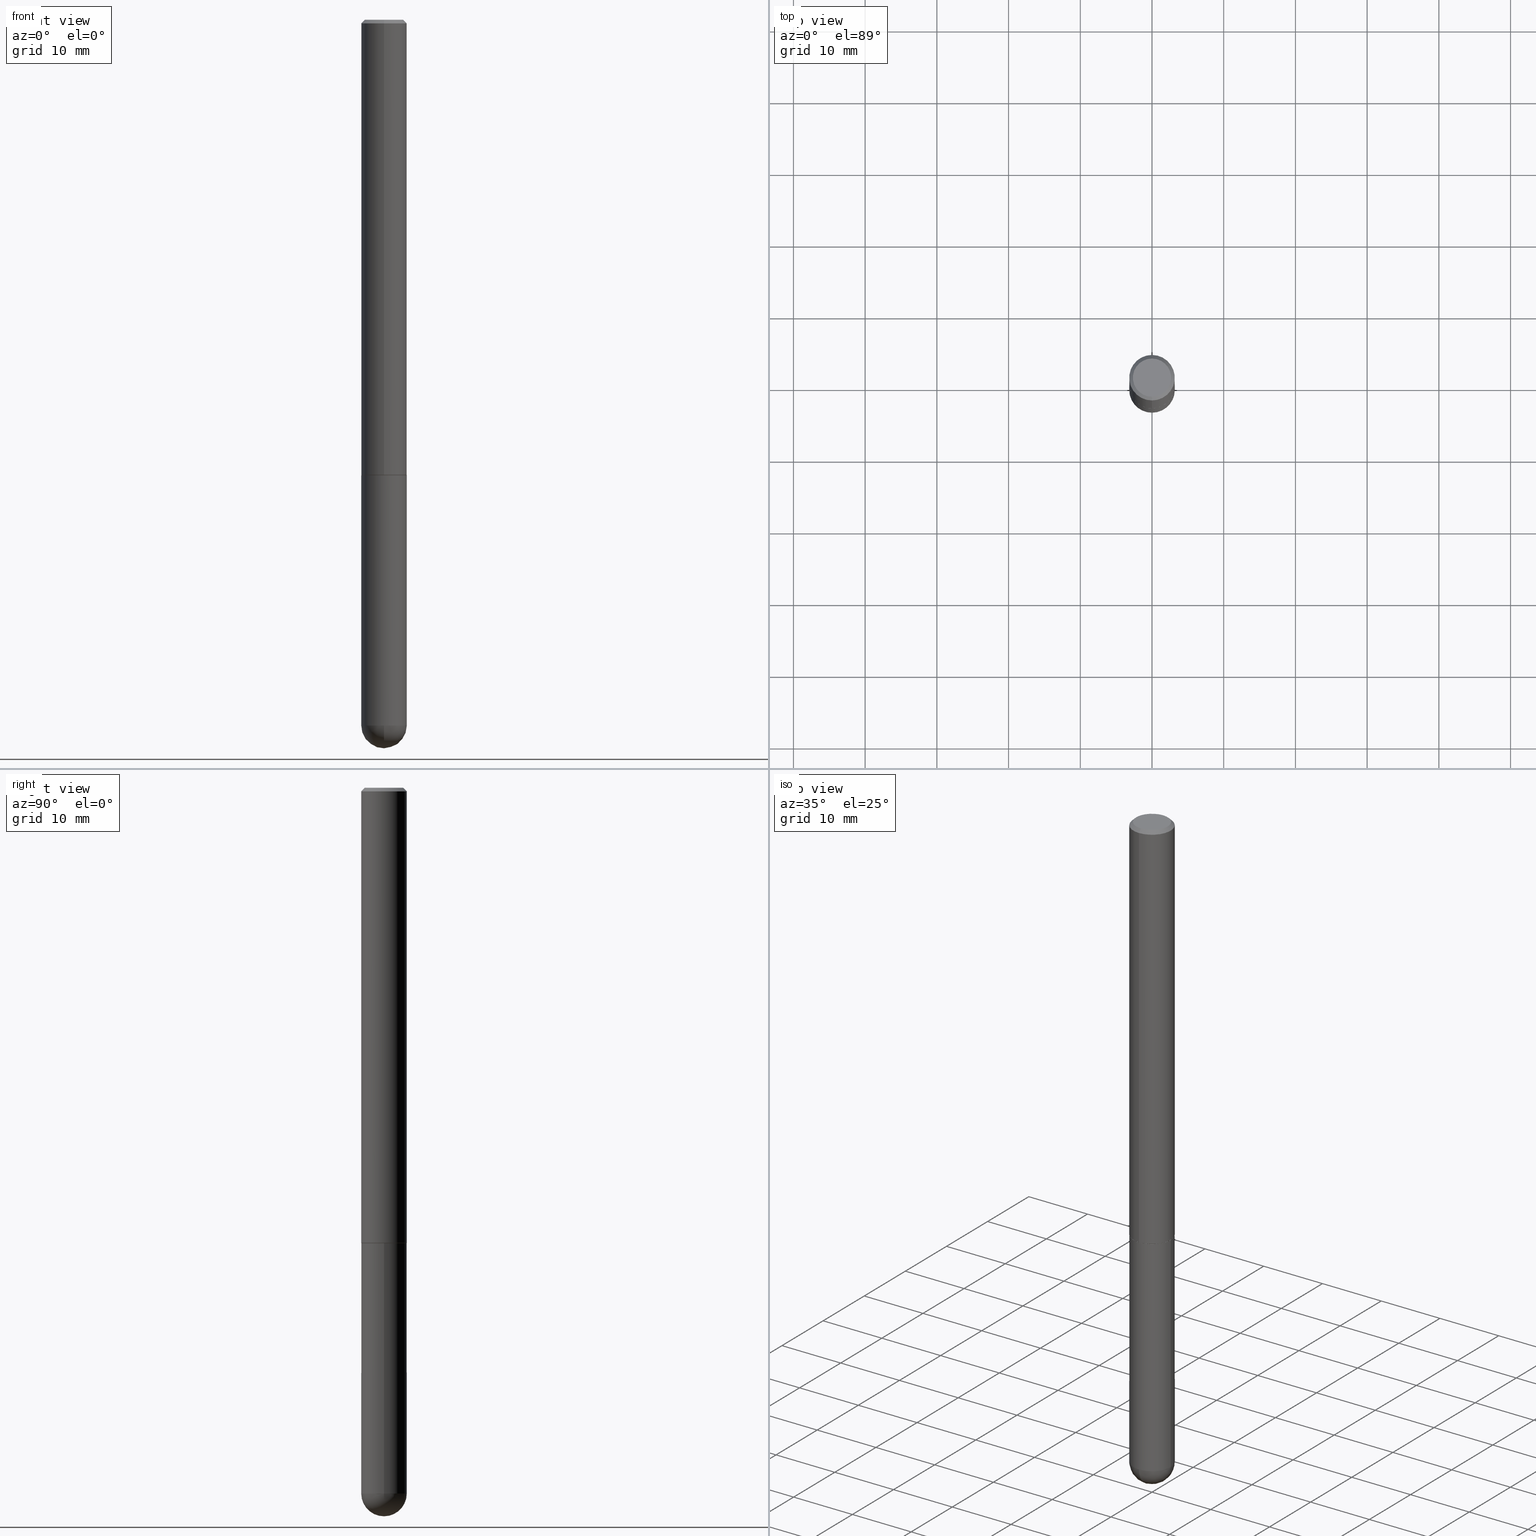
[diagram: canonical four-view strip — front | top / right | iso, engineering-drawing reading convention]
A machine part, canonical four-view strip (front | top / right | iso — engineering-drawing reading convention). The complete STEP part file that produces these views, byte-faithful:
ISO-10303-21;
HEADER;
FILE_DESCRIPTION (( 'STEP AP203' ),
    '1' );
FILE_NAME ('33324.STEP',
    '2024-02-21T18:03:57',
    ( '' ),
    ( '' ),
    'SwSTEP 2.0',
    'SolidWorks 2023',
    '' );
FILE_SCHEMA (( 'CONFIG_CONTROL_DESIGN' ));
ENDSEC;

DATA;
#1 = APPLICATION_PROTOCOL_DEFINITION ( 'international standard', 'config_control_design', 1994, #11 ) ;
#2 = VERTEX_POINT ( 'NONE', #313 ) ;
#3 = PERSON_AND_ORGANIZATION ( #84, #184 ) ;
#4 = DIRECTION ( 'NONE',  ( -2.445231133379233042E-29, 3.491821699828695402E-15, 1.000000000000000000 ) ) ;
#5 = ADVANCED_BREP_SHAPE_REPRESENTATION ( '33324', ( #63, #196, #103 ), #148 ) ;
#6 = EDGE_CURVE ( 'NONE', #157, #98, #39, .T. ) ;
#7 = PERSON_AND_ORGANIZATION ( #84, #184 ) ;
#8 = AXIS2_PLACEMENT_3D ( 'NONE', #124, #333, #246 ) ;
#9 = AXIS2_PLACEMENT_3D ( 'NONE', #109, #110, #47 ) ;
#10 = SPHERICAL_SURFACE ( 'NONE', #43, 0.1250000000000001943 ) ;
#11 = APPLICATION_CONTEXT ( 'configuration controlled 3d designs of mechanical parts and assemblies' ) ;
#12 = PERSON_AND_ORGANIZATION ( #84, #184 ) ;
#13 = CARTESIAN_POINT ( 'NONE',  ( -8.881784197000327384E-16, -0.1250000000000138500, -3.874999999999999556 ) ) ;
#14 = DIRECTION ( 'NONE',  ( -2.445231133379233042E-29, 3.491821699828695796E-15, 1.000000000000000000 ) ) ;
#15 = CYLINDRICAL_SURFACE ( 'NONE', #410, 0.1250000000000000000 ) ;
#16 = AXIS2_PLACEMENT_3D ( 'NONE', #388, #107, #79 ) ;
#17 = APPROVAL ( #197, 'UNSPECIFIED' ) ;
#18 = LINE ( 'NONE', #347, #285 ) ;
#19 = ADVANCED_FACE ( 'NONE', ( #134 ), #181, .T. ) ;
#20 = DIRECTION ( 'NONE',  ( -2.445468806185136877E-29, 3.491481338843145188E-15, 1.000000000000000000 ) ) ;
#21 = LINE ( 'NONE', #300, #344 ) ;
#22 = CC_DESIGN_SECURITY_CLASSIFICATION ( #70, ( #136 ) ) ;
#23 = DIRECTION ( 'NONE',  ( -2.445231133379233042E-29, 3.491821699828695796E-15, 1.000000000000000000 ) ) ;
#24 = DIRECTION ( 'NONE',  ( 2.445231133379232762E-29, -3.491821699828695402E-15, -1.000000000000000000 ) ) ;
#25 = DIRECTION ( 'NONE',  ( 5.024295867789304057E-15, 0.7071067811867248754, 0.7071067811863699371 ) ) ;
#26 = ORIENTED_EDGE ( 'NONE', *, *, #202, .T. ) ;
#27 = AXIS2_PLACEMENT_3D ( 'NONE', #235, #23, #330 ) ;
#28 =( LENGTH_UNIT ( ) NAMED_UNIT ( * ) SI_UNIT ( $, .METRE. ) );
#29 = EDGE_LOOP ( 'NONE', ( #236, #380 ) ) ;
#30 = EDGE_CURVE ( 'NONE', #2, #62, #18, .T. ) ;
#31 = CARTESIAN_POINT ( 'NONE',  ( 8.846257060213868511E-16, 0.1239999999999912700, -2.500000000000000444 ) ) ;
#32 = ORIENTED_EDGE ( 'NONE', *, *, #6, .T. ) ;
#33 = DIRECTION ( 'NONE',  ( -2.445231133379233042E-29, 3.491821699828695796E-15, 1.000000000000000000 ) ) ;
#34 = ORIENTED_EDGE ( 'NONE', *, *, #301, .T. ) ;
#35 = AXIS2_PLACEMENT_3D ( 'NONE', #45, #349, #288 ) ;
#36 = DIRECTION ( 'NONE',  ( 4.937700262164541731E-15, 0.7071067811865442421, -0.7071067811865507924 ) ) ;
#37 = ORIENTED_EDGE ( 'NONE', *, *, #348, .F. ) ;
#38 = MECHANICAL_CONTEXT ( 'NONE', #11, 'mechanical' ) ;
#39 = LINE ( 'NONE', #164, #365 ) ;
#40 = DIRECTION ( 'NONE',  ( -2.445231133379233042E-29, 3.491821699828695796E-15, 1.000000000000000000 ) ) ;
#41 = PERSON_AND_ORGANIZATION ( #84, #184 ) ;
#42 = AXIS2_PLACEMENT_3D ( 'NONE', #226, #40, #231 ) ;
#43 = AXIS2_PLACEMENT_3D ( 'NONE', #138, #355, #150 ) ;
#44 = CARTESIAN_POINT ( 'NONE',  ( -8.575622497214407550E-16, -0.1250000000000000555, -0.01999999999999959102 ) ) ;
#45 = CARTESIAN_POINT ( 'NONE',  ( 6.113077833448083166E-29, -8.729554249571739293E-15, -2.500000000000000000 ) ) ;
#46 = DATE_AND_TIME ( #381, #234 ) ;
#47 = DIRECTION ( 'NONE',  ( -1.000000000000000000, 6.982962677686265922E-15, -4.876176775795935793E-29 ) ) ;
#48 = CARTESIAN_POINT ( 'NONE',  ( 6.113672015462842613E-29, -8.728703347107864943E-15, -2.500000000000000000 ) ) ;
#49 = AXIS2_PLACEMENT_3D ( 'NONE', #89, #91, #53 ) ;
#50 = EDGE_CURVE ( 'NONE', #188, #269, #396, .T. ) ;
#51 = DIRECTION ( 'NONE',  ( -2.445231133379233042E-29, 3.491821699828695796E-15, 1.000000000000000000 ) ) ;
#52 = FACE_OUTER_BOUND ( 'NONE', #221, .T. ) ;
#53 = DIRECTION ( 'NONE',  ( 1.000000000000000000, -6.982962677686261189E-15, 0.000000000000000000 ) ) ;
#54 = ORIENTED_EDGE ( 'NONE', *, *, #30, .F. ) ;
#55 = CIRCLE ( 'NONE', #16, 0.1249999999999999861 ) ;
#56 = CC_DESIGN_APPROVAL ( #17, ( #70 ) ) ;
#57 = PRODUCT_DEFINITION_SHAPE ( 'NONE', 'NONE',  #290 ) ;
#58 = CARTESIAN_POINT ( 'NONE',  ( 6.110632602314704135E-29, -8.726062427871912019E-15, -2.499000000000000110 ) ) ;
#59 = PLANE ( 'NONE',  #167 ) ;
#60 = CC_DESIGN_DATE_AND_TIME_ASSIGNMENT ( #252, #129, ( #290 ) ) ;
#61 = DIRECTION ( 'NONE',  ( -2.445468806185136597E-29, 3.491481338843145583E-15, 1.000000000000000000 ) ) ;
#62 = VERTEX_POINT ( 'NONE', #74 ) ;
#63 = MANIFOLD_SOLID_BREP ( 'Body-Move/Copy2[1]', #311 ) ;
#64 = VECTOR ( 'NONE', #20, 39.37007874015748143 ) ;
#65 = EDGE_LOOP ( 'NONE', ( #216, #249, #67, #185 ) ) ;
#66 = APPROVAL_ROLE ( '' ) ;
#67 = ORIENTED_EDGE ( 'NONE', *, *, #404, .T. ) ;
#68 = DATE_AND_TIME ( #92, #128 ) ;
#69 = ORIENTED_EDGE ( 'NONE', *, *, #131, .T. ) ;
#70 = SECURITY_CLASSIFICATION ( '', '', #351 ) ;
#71 = PERSON_AND_ORGANIZATION ( #84, #184 ) ;
#72 = ADVANCED_FACE ( 'NONE', ( #81 ), #15, .T. ) ;
#73 = ORIENTED_EDGE ( 'NONE', *, *, #321, .F. ) ;
#74 = CARTESIAN_POINT ( 'NONE',  ( 8.728703347107836346E-16, 0.1249999999999999167, -0.02000000000000046185 ) ) ;
#75 = PERSON_AND_ORGANIZATION_ROLE ( 'design_supplier' ) ;
#76 = DIRECTION ( 'NONE',  ( 1.000000000000000000, -6.982962677686261189E-15, 0.000000000000000000 ) ) ;
#77 = EDGE_CURVE ( 'NONE', #133, #98, #82, .T. ) ;
#78 = AXIS2_PLACEMENT_3D ( 'NONE', #172, #291, #314 ) ;
#79 = DIRECTION ( 'NONE',  ( -6.982962677686265922E-15, -1.000000000000000000, 3.483106191921935949E-15 ) ) ;
#80 = SHAPE_DEFINITION_REPRESENTATION ( #57, #5 ) ;
#81 = FACE_OUTER_BOUND ( 'NONE', #310, .T. ) ;
#82 = LINE ( 'NONE', #44, #240 ) ;
#83 = CARTESIAN_POINT ( 'NONE',  ( 8.030407079339217170E-16, 0.1050000000000002737, -6.440588524350579794E-16 ) ) ;
#84 = PERSON ( 'UNSPECIFIED', 'UNSPECIFIED', 'UNSPECIFIED', ('UNSPECIFIED'), ('UNSPECIFIED'), ('UNSPECIFIED') ) ;
#85 = DIRECTION ( 'NONE',  ( -6.982962677686266711E-15, -1.000000000000000000, 4.370956789862811683E-15 ) ) ;
#86 = ORIENTED_EDGE ( 'NONE', *, *, #122, .T. ) ;
#87 = PLANE ( 'NONE',  #277 ) ;
#88 = EDGE_LOOP ( 'NONE', ( #361, #273, #37, #341 ) ) ;
#89 = CARTESIAN_POINT ( 'NONE',  ( 9.476191623967404313E-29, -1.352949018801718908E-14, -3.875000000000000000 ) ) ;
#90 = AXIS2_PLACEMENT_3D ( 'NONE', #141, #142, #76 ) ;
#91 = DIRECTION ( 'NONE',  ( -2.445468806185136597E-29, 3.491481338843145583E-15, 1.000000000000000000 ) ) ;
#92 = CALENDAR_DATE ( 2024, 21, 2 ) ;
#93 = ADVANCED_FACE ( 'NONE', ( #317 ), #295, .T. ) ;
#94 = VERTEX_POINT ( 'NONE', #356 ) ;
#95 = CC_DESIGN_PERSON_AND_ORGANIZATION_ASSIGNMENT ( #71, #187, ( #290 ) ) ;
#96 = AXIS2_PLACEMENT_3D ( 'NONE', #267, #297, #325 ) ;
#97 = APPROVAL_PERSON_ORGANIZATION ( #222, #179, #66 ) ;
#98 = VERTEX_POINT ( 'NONE', #292 ) ;
#99 = ORIENTED_EDGE ( 'NONE', *, *, #339, .F. ) ;
#100 = CARTESIAN_POINT ( 'NONE',  ( 0.000000000000000000, 0.000000000000000000, 0.000000000000000000 ) ) ;
#101 = ORIENTED_EDGE ( 'NONE', *, *, #131, .F. ) ;
#102 = CIRCLE ( 'NONE', #322, 0.1250000000000001943 ) ;
#103 = AXIS2_PLACEMENT_3D ( 'NONE', #279, #219, #214 ) ;
#104 = CC_DESIGN_PERSON_AND_ORGANIZATION_ASSIGNMENT ( #340, #307, ( #362 ) ) ;
#105 = ORIENTED_EDGE ( 'NONE', *, *, #404, .F. ) ;
#106 = CARTESIAN_POINT ( 'NONE',  ( 0.000000000000000000, 0.000000000000000000, 0.000000000000000000 ) ) ;
#107 = DIRECTION ( 'NONE',  ( -2.445231133379233042E-29, 3.491821699828695796E-15, 1.000000000000000000 ) ) ;
#108 = CONICAL_SURFACE ( 'NONE', #42, 0.1239999999999999991, 0.7853981633976958587 ) ;
#109 = CARTESIAN_POINT ( 'NONE',  ( 8.728703347108443769E-16, 0.1249999999999912709, -2.500000000000000444 ) ) ;
#110 = DIRECTION ( 'NONE',  ( 2.438088387897960049E-29, -3.491481338843145188E-15, -1.000000000000000000 ) ) ;
#111 = ADVANCED_FACE ( 'NONE', ( #261 ), #259, .F. ) ;
#112 = CARTESIAN_POINT ( 'NONE',  ( 9.476191623967404313E-29, -1.352949018801718908E-14, -3.875000000000000000 ) ) ;
#113 = CARTESIAN_POINT ( 'NONE',  ( 8.728703347108771147E-16, 0.1249999999999863443, -3.875000000000000444 ) ) ;
#114 = VECTOR ( 'NONE', #408, 39.37007874015748854 ) ;
#115 = ORIENTED_EDGE ( 'NONE', *, *, #293, .F. ) ;
#116 = CARTESIAN_POINT ( 'NONE',  ( 9.145071846053518065E-29, -1.400367255615723938E-14, -3.875000000000000000 ) ) ;
#117 = ORIENTED_EDGE ( 'NONE', *, *, #165, .F. ) ;
#118 = DIRECTION ( 'NONE',  ( -6.982962677686266711E-15, -1.000000000000000000, 3.491821699828695796E-15 ) ) ;
#119 = CARTESIAN_POINT ( 'NONE',  ( 9.456100236134031739E-29, -1.443245368101796326E-14, -4.000000000000000888 ) ) ;
#120 = EDGE_LOOP ( 'NONE', ( #338, #130, #328, #73 ) ) ;
#121 = AXIS2_PLACEMENT_3D ( 'NONE', #263, #14, #319 ) ;
#122 = EDGE_CURVE ( 'NONE', #94, #409, #211, .T. ) ;
#123 = VERTEX_POINT ( 'NONE', #13 ) ;
#124 = CARTESIAN_POINT ( 'NONE',  ( 4.890462266758471899E-31, -6.983643399657399974E-17, -0.02000000000000002470 ) ) ;
#125 = LINE ( 'NONE', #370, #114 ) ;
#126 = ORIENTED_EDGE ( 'NONE', *, *, #359, .T. ) ;
#127 = AXIS2_PLACEMENT_3D ( 'NONE', #208, #237, #400 ) ;
#128 = LOCAL_TIME ( 13, 3, 57.00000000000000000, #274 ) ;
#129 = DATE_TIME_ROLE ( 'creation_date' ) ;
#130 = ORIENTED_EDGE ( 'NONE', *, *, #342, .T. ) ;
#131 = EDGE_CURVE ( 'NONE', #345, #306, #248, .T. ) ;
#132 = APPROVAL_DATE_TIME ( #68, #179 ) ;
#133 = VERTEX_POINT ( 'NONE', #194 ) ;
#134 = FACE_OUTER_BOUND ( 'NONE', #65, .T. ) ;
#135 = AXIS2_PLACEMENT_3D ( 'NONE', #58, #358, #85 ) ;
#136 = PRODUCT_DEFINITION_FORMATION_WITH_SPECIFIED_SOURCE ( 'ANY', '', #362, .NOT_KNOWN. ) ;
#137 = ADVANCED_FACE ( 'NONE', ( #198 ), #230, .T. ) ;
#138 = CARTESIAN_POINT ( 'NONE',  ( 9.145071846053518065E-29, -1.400367255615723938E-14, -3.875000000000000000 ) ) ;
#139 = DIRECTION ( 'NONE',  ( -6.982962677686266711E-15, -1.000000000000000000, 3.491821699828695796E-15 ) ) ;
#140 = CIRCLE ( 'NONE', #241, 0.1239999999999999991 ) ;
#141 = CARTESIAN_POINT ( 'NONE',  ( 9.476191623967404313E-29, -1.352949018801718908E-14, -3.875000000000000000 ) ) ;
#142 = DIRECTION ( 'NONE',  ( -2.445468806185136597E-29, 3.491481338843145583E-15, 1.000000000000000000 ) ) ;
#143 = APPROVAL ( #190, 'UNSPECIFIED' ) ;
#144 = DIRECTION ( 'NONE',  ( -2.445231133379233042E-29, 3.491821699828695796E-15, 1.000000000000000000 ) ) ;
#145 = CONICAL_SURFACE ( 'NONE', #373, 0.1239999999999999991, 0.7853981633976958587 ) ;
#146 = EDGE_CURVE ( 'NONE', #281, #133, #183, .T. ) ;
#147 = CARTESIAN_POINT ( 'NONE',  ( 6.113077833448083166E-29, -8.729554249571739293E-15, -2.500000000000000000 ) ) ;
#148 =( GEOMETRIC_REPRESENTATION_CONTEXT ( 3 ) GLOBAL_UNCERTAINTY_ASSIGNED_CONTEXT ( ( #207 ) ) GLOBAL_UNIT_ASSIGNED_CONTEXT ( ( #276, #406, #332 ) ) REPRESENTATION_CONTEXT ( 'NONE', 'WORKASPACE' ) );
#149 = VERTEX_POINT ( 'NONE', #392 ) ;
#150 = DIRECTION ( 'NONE',  ( 6.982962677686265922E-15, 1.000000000000000000, -4.370956789862814050E-15 ) ) ;
#151 = CARTESIAN_POINT ( 'NONE',  ( 4.890462266758471899E-31, -6.983643399657399974E-17, -0.02000000000000002470 ) ) ;
#152 = ADVANCED_FACE ( 'NONE', ( #260 ), #108, .T. ) ;
#153 = CARTESIAN_POINT ( 'NONE',  ( 6.113672015462842613E-29, -8.728703347107864943E-15, -2.500000000000000000 ) ) ;
#154 = EDGE_LOOP ( 'NONE', ( #86, #191, #99, #280 ) ) ;
#155 = CIRCLE ( 'NONE', #382, 0.1250000000000002776 ) ;
#156 = LENGTH_MEASURE_WITH_UNIT ( LENGTH_MEASURE( 0.02539999999999999897 ), #28 );
#157 = VERTEX_POINT ( 'NONE', #166 ) ;
#158 = ORIENTED_EDGE ( 'NONE', *, *, #218, .T. ) ;
#159 = CALENDAR_DATE ( 2024, 21, 2 ) ;
#160 = ORIENTED_EDGE ( 'NONE', *, *, #232, .T. ) ;
#161 = LOCAL_TIME ( 13, 3, 57.00000000000000000, #384 ) ;
#162 = ORIENTED_EDGE ( 'NONE', *, *, #385, .T. ) ;
#163 = DATE_AND_TIME ( #304, #305 ) ;
#164 = CARTESIAN_POINT ( 'NONE',  ( -8.728703347107842263E-16, -0.1250000000000001388, 4.364777124785874183E-16 ) ) ;
#165 = EDGE_CURVE ( 'NONE', #62, #98, #55, .T. ) ;
#166 = CARTESIAN_POINT ( 'NONE',  ( -8.728703347107241743E-16, -0.1250000000000090206, -2.498999999999999666 ) ) ;
#167 = AXIS2_PLACEMENT_3D ( 'NONE', #357, #24, #327 ) ;
#168 = ADVANCED_FACE ( 'NONE', ( #201 ), #203, .T. ) ;
#169 = DIRECTION ( 'NONE',  ( 1.000000000000000000, -6.982962677686270655E-15, 0.000000000000000000 ) ) ;
#170 = CARTESIAN_POINT ( 'NONE',  ( 0.000000000000000000, 0.000000000000000000, 0.000000000000000000 ) ) ;
#171 = CONICAL_SURFACE ( 'NONE', #403, 0.1249999999999999861, 0.7853981633974471688 ) ;
#172 = CARTESIAN_POINT ( 'NONE',  ( 9.145071846053518065E-29, -1.400367255615723938E-14, -3.875000000000000000 ) ) ;
#173 = DIRECTION ( 'NONE',  ( -6.982962677686266711E-15, -1.000000000000000000, 4.370956789862811683E-15 ) ) ;
#174 = CARTESIAN_POINT ( 'NONE',  ( 6.110632602314704135E-29, -8.726062427871912019E-15, -2.499000000000000110 ) ) ;
#175 = APPLICATION_CONTEXT ( 'configuration controlled 3d designs of mechanical parts and assemblies' ) ;
#176 = DIRECTION ( 'NONE',  ( 1.000000000000000000, -6.982962677686261189E-15, 0.000000000000000000 ) ) ;
#177 = CYLINDRICAL_SURFACE ( 'NONE', #286, 0.1250000000000000000 ) ;
#178 = DIRECTION ( 'NONE',  ( 6.982962677686265922E-15, 1.000000000000000000, -3.483106191921935949E-15 ) ) ;
#179 = APPROVAL ( #336, 'UNSPECIFIED' ) ;
#180 = DIRECTION ( 'NONE',  ( -6.982962677686265922E-15, -1.000000000000000000, 4.406206441393973340E-15 ) ) ;
#181 = CONICAL_SURFACE ( 'NONE', #8, 0.1249999999999999861, 0.7853981633974471688 ) ;
#182 = ORIENTED_EDGE ( 'NONE', *, *, #287, .F. ) ;
#183 = CIRCLE ( 'NONE', #329, 0.1050000000000002737 ) ;
#184 = ORGANIZATION ( 'UNSPECIFIED', 'UNSPECIFIED', '' ) ;
#185 = ORIENTED_EDGE ( 'NONE', *, *, #165, .T. ) ;
#186 = ADVANCED_FACE ( 'NONE', ( #284 ), #10, .T. ) ;
#187 = PERSON_AND_ORGANIZATION_ROLE ( 'creator' ) ;
#188 = VERTEX_POINT ( 'NONE', #389 ) ;
#189 = CC_DESIGN_PERSON_AND_ORGANIZATION_ASSIGNMENT ( #41, #387, ( #136 ) ) ;
#190 = APPROVAL_STATUS ( 'not_yet_approved' ) ;
#191 = ORIENTED_EDGE ( 'NONE', *, *, #315, .T. ) ;
#192 = COORDINATED_UNIVERSAL_TIME_OFFSET ( 5, 0, .BEHIND. ) ;
#193 = EDGE_LOOP ( 'NONE', ( #383, #312, #101, #256 ) ) ;
#194 = CARTESIAN_POINT ( 'NONE',  ( -7.889572697437268042E-16, -0.1050000000000002737, 8.922370452897002864E-17 ) ) ;
#195 = CC_DESIGN_DATE_AND_TIME_ASSIGNMENT ( #318, #283, ( #70 ) ) ;
#196 = MANIFOLD_SOLID_BREP ( 'Body-Move/Copy2[2]', #395 ) ;
#197 = APPROVAL_STATUS ( 'not_yet_approved' ) ;
#198 = FACE_OUTER_BOUND ( 'NONE', #193, .T. ) ;
#199 = APPROVAL_PERSON_ORGANIZATION ( #250, #143, #379 ) ;
#200 = CALENDAR_DATE ( 2024, 21, 2 ) ;
#201 = FACE_OUTER_BOUND ( 'NONE', #411, .T. ) ;
#202 = EDGE_CURVE ( 'NONE', #149, #123, #262, .T. ) ;
#203 = CYLINDRICAL_SURFACE ( 'NONE', #121, 0.1250000000000001388 ) ;
#204 = DIRECTION ( 'NONE',  ( -6.982962677686265922E-15, -1.000000000000000000, 3.491821699828695402E-15 ) ) ;
#205 = CIRCLE ( 'NONE', #96, 0.1250000000000001943 ) ;
#206 = CARTESIAN_POINT ( 'NONE',  ( -0.1250000000000000000, 8.881784197001252323E-16, -6.148668862818632227E-30 ) ) ;
#207 = UNCERTAINTY_MEASURE_WITH_UNIT (LENGTH_MEASURE( 1.000000000000000082E-05 ), #276, 'distance_accuracy_value', 'NONE');
#208 = CARTESIAN_POINT ( 'NONE',  ( 9.476191623967404313E-29, -1.352949018801718908E-14, -3.875000000000000000 ) ) ;
#209 = DIRECTION ( 'NONE',  ( -2.445231133379233042E-29, 3.491821699828695796E-15, 1.000000000000000000 ) ) ;
#210 = ORIENTED_EDGE ( 'NONE', *, *, #218, .F. ) ;
#211 = CIRCLE ( 'NONE', #35, 0.1239999999999999991 ) ;
#212 = CARTESIAN_POINT ( 'NONE',  ( 0.1250000000000000278, -1.200196710227331272E-14, -3.875000000000000000 ) ) ;
#213 = DIRECTION ( 'NONE',  ( 1.000000000000000000, -6.982962677686270655E-15, 0.000000000000000000 ) ) ;
#214 = DIRECTION ( 'NONE',  ( 1.000000000000000000, 0.000000000000000000, 0.000000000000000000 ) ) ;
#215 = CIRCLE ( 'NONE', #217, 0.1250000000000000278 ) ;
#216 = ORIENTED_EDGE ( 'NONE', *, *, #77, .F. ) ;
#217 = AXIS2_PLACEMENT_3D ( 'NONE', #112, #401, #176 ) ;
#218 = EDGE_CURVE ( 'NONE', #345, #269, #21, .T. ) ;
#219 = DIRECTION ( 'NONE',  ( 0.000000000000000000, 0.000000000000000000, 1.000000000000000000 ) ) ;
#220 = ORIENTED_EDGE ( 'NONE', *, *, #223, .T. ) ;
#221 = EDGE_LOOP ( 'NONE', ( #278, #308, #182, #210, #69 ) ) ;
#222 = PERSON_AND_ORGANIZATION ( #84, #184 ) ;
#223 = EDGE_CURVE ( 'NONE', #409, #94, #140, .T. ) ;
#224 = EDGE_LOOP ( 'NONE', ( #364, #376, #402, #105 ) ) ;
#225 = CIRCLE ( 'NONE', #49, 0.1250000000000000278 ) ;
#226 = CARTESIAN_POINT ( 'NONE',  ( 6.113077833448083166E-29, -8.729554249571739293E-15, -2.500000000000000000 ) ) ;
#227 = DIRECTION ( 'NONE',  ( -2.445468806185136597E-29, 3.491481338843145583E-15, 1.000000000000000000 ) ) ;
#228 = DIRECTION ( 'NONE',  ( -2.445468806185136597E-29, 3.491481338843145583E-15, 1.000000000000000000 ) ) ;
#229 = CIRCLE ( 'NONE', #27, 0.1249999999999999861 ) ;
#230 = SPHERICAL_SURFACE ( 'NONE', #78, 0.1250000000000001943 ) ;
#231 = DIRECTION ( 'NONE',  ( -6.982962677686265922E-15, -1.000000000000000000, 4.406206441393973340E-15 ) ) ;
#232 = EDGE_CURVE ( 'NONE', #133, #281, #303, .T. ) ;
#233 = FACE_OUTER_BOUND ( 'NONE', #244, .T. ) ;
#234 = LOCAL_TIME ( 13, 3, 57.00000000000000000, #346 ) ;
#235 = CARTESIAN_POINT ( 'NONE',  ( 4.890462266758471899E-31, -6.983643399657399974E-17, -0.02000000000000002470 ) ) ;
#236 = ORIENTED_EDGE ( 'NONE', *, *, #122, .F. ) ;
#237 = DIRECTION ( 'NONE',  ( -2.445468806185136597E-29, 3.491481338843145583E-15, 1.000000000000000000 ) ) ;
#238 = VERTEX_POINT ( 'NONE', #119 ) ;
#239 = FACE_OUTER_BOUND ( 'NONE', #29, .T. ) ;
#240 = VECTOR ( 'NONE', #386, 39.37007874015748143 ) ;
#241 = AXIS2_PLACEMENT_3D ( 'NONE', #147, #209, #242 ) ;
#242 = DIRECTION ( 'NONE',  ( -6.982962677686265922E-15, -1.000000000000000000, 4.406206441393973340E-15 ) ) ;
#243 = APPROVAL_PERSON_ORGANIZATION ( #3, #17, #390 ) ;
#244 = EDGE_LOOP ( 'NONE', ( #275, #160 ) ) ;
#245 = ADVANCED_FACE ( 'NONE', ( #233 ), #59, .F. ) ;
#246 = DIRECTION ( 'NONE',  ( 6.982962677686265922E-15, 1.000000000000000000, -3.483106191921935949E-15 ) ) ;
#247 = FACE_OUTER_BOUND ( 'NONE', #154, .T. ) ;
#248 = CIRCLE ( 'NONE', #90, 0.1250000000000000278 ) ;
#249 = ORIENTED_EDGE ( 'NONE', *, *, #146, .F. ) ;
#250 = PERSON_AND_ORGANIZATION ( #84, #184 ) ;
#251 = EDGE_LOOP ( 'NONE', ( #399, #253 ) ) ;
#252 = DATE_AND_TIME ( #159, #354 ) ;
#253 = ORIENTED_EDGE ( 'NONE', *, *, #50, .T. ) ;
#254 = ADVANCED_FACE ( 'NONE', ( #239 ), #87, .F. ) ;
#255 = PERSON_AND_ORGANIZATION_ROLE ( 'classification_officer' ) ;
#256 = ORIENTED_EDGE ( 'NONE', *, *, #301, .F. ) ;
#257 = CIRCLE ( 'NONE', #135, 0.1250000000000002776 ) ;
#258 = CC_DESIGN_APPROVAL ( #143, ( #136 ) ) ;
#259 = PLANE ( 'NONE',  #9 ) ;
#260 = FACE_OUTER_BOUND ( 'NONE', #337, .T. ) ;
#261 = FACE_OUTER_BOUND ( 'NONE', #251, .T. ) ;
#262 = CIRCLE ( 'NONE', #127, 0.1250000000000000278 ) ;
#263 = CARTESIAN_POINT ( 'NONE',  ( 0.000000000000000000, 0.000000000000000000, 0.000000000000000000 ) ) ;
#264 = CARTESIAN_POINT ( 'NONE',  ( 6.783500887765189556E-45, -9.686927046430710315E-31, -2.774175739530439939E-16 ) ) ;
#265 = FACE_OUTER_BOUND ( 'NONE', #224, .T. ) ;
#266 = CARTESIAN_POINT ( 'NONE',  ( 6.783500887765189556E-45, -9.686927046430710315E-31, -2.774175739530439939E-16 ) ) ;
#267 = CARTESIAN_POINT ( 'NONE',  ( 9.145071846053518065E-29, -1.400367255615723938E-14, -3.875000000000000000 ) ) ;
#268 = DIRECTION ( 'NONE',  ( -2.445231133379232762E-29, 3.491821699828695402E-15, 1.000000000000000000 ) ) ;
#269 = VERTEX_POINT ( 'NONE', #398 ) ;
#270 = VECTOR ( 'NONE', #25, 39.37007874015748854 ) ;
#271 = DIRECTION ( 'NONE',  ( 6.982962677686266711E-15, 1.000000000000000000, 0.000000000000000000 ) ) ;
#272 = LINE ( 'NONE', #377, #335 ) ;
#273 = ORIENTED_EDGE ( 'NONE', *, *, #30, .T. ) ;
#274 = COORDINATED_UNIVERSAL_TIME_OFFSET ( 5, 0, .BEHIND. ) ;
#275 = ORIENTED_EDGE ( 'NONE', *, *, #146, .T. ) ;
#276 =( CONVERSION_BASED_UNIT ( 'INCH', #156 ) LENGTH_UNIT ( ) NAMED_UNIT ( #324 ) );
#277 = AXIS2_PLACEMENT_3D ( 'NONE', #363, #268, #368 ) ;
#278 = ORIENTED_EDGE ( 'NONE', *, *, #321, .T. ) ;
#279 = CARTESIAN_POINT ( 'NONE',  ( 0.000000000000000000, 0.000000000000000000, 0.000000000000000000 ) ) ;
#280 = ORIENTED_EDGE ( 'NONE', *, *, #385, .F. ) ;
#281 = VERTEX_POINT ( 'NONE', #83 ) ;
#282 = ADVANCED_FACE ( 'NONE', ( #265 ), #171, .T. ) ;
#283 = DATE_TIME_ROLE ( 'classification_date' ) ;
#284 = FACE_OUTER_BOUND ( 'NONE', #120, .T. ) ;
#285 = VECTOR ( 'NONE', #320, 39.37007874015748143 ) ;
#286 = AXIS2_PLACEMENT_3D ( 'NONE', #100, #61, #369 ) ;
#287 = EDGE_CURVE ( 'NONE', #269, #188, #294, .T. ) ;
#288 = DIRECTION ( 'NONE',  ( -6.982962677686265922E-15, -1.000000000000000000, 4.406206441393973340E-15 ) ) ;
#289 = APPROVAL_DATE_TIME ( #46, #17 ) ;
#290 = PRODUCT_DEFINITION ( 'UNKNOWN', '', #136, #334 ) ;
#291 = DIRECTION ( 'NONE',  ( -1.000000000000000000, 6.982962677686265922E-15, -4.883557194083112340E-29 ) ) ;
#292 = CARTESIAN_POINT ( 'NONE',  ( -8.575622497214407550E-16, -0.1250000000000000555, -0.01999999999999959102 ) ) ;
#293 = EDGE_CURVE ( 'NONE', #149, #188, #331, .T. ) ;
#294 = CIRCLE ( 'NONE', #397, 0.1250000000000000000 ) ;
#295 = CYLINDRICAL_SURFACE ( 'NONE', #366, 0.1250000000000001388 ) ;
#296 = PRODUCT_RELATED_PRODUCT_CATEGORY ( 'detail', '', ( #362 ) ) ;
#297 = DIRECTION ( 'NONE',  ( -1.000000000000000000, 7.105427357601001070E-15, -4.926315508542082329E-29 ) ) ;
#298 = CARTESIAN_POINT ( 'NONE',  ( 8.810729923425852623E-16, 0.1239999999999912700, -2.500000000000000444 ) ) ;
#299 = DIRECTION ( 'NONE',  ( 1.000000000000000000, -6.982962677686265922E-15, 4.883557194083112340E-29 ) ) ;
#300 = CARTESIAN_POINT ( 'NONE',  ( 0.1250000000000000000, -8.728703347107833388E-16, 6.095220969744919741E-30 ) ) ;
#301 = EDGE_CURVE ( 'NONE', #123, #345, #225, .T. ) ;
#302 = DIRECTION ( 'NONE',  ( -2.445468806185136597E-29, 3.491481338843145583E-15, 1.000000000000000000 ) ) ;
#303 = CIRCLE ( 'NONE', #353, 0.1050000000000002737 ) ;
#304 = CALENDAR_DATE ( 2024, 21, 2 ) ;
#305 = LOCAL_TIME ( 13, 3, 57.00000000000000000, #192 ) ;
#306 = VERTEX_POINT ( 'NONE', #113 ) ;
#307 = PERSON_AND_ORGANIZATION_ROLE ( 'design_owner' ) ;
#308 = ORIENTED_EDGE ( 'NONE', *, *, #293, .T. ) ;
#309 = COORDINATED_UNIVERSAL_TIME_OFFSET ( 5, 0, .BEHIND. ) ;
#310 = EDGE_LOOP ( 'NONE', ( #115, #26, #34, #158, #371 ) ) ;
#311 = CLOSED_SHELL ( 'NONE', ( #367, #186, #137, #111, #72 ) ) ;
#312 = ORIENTED_EDGE ( 'NONE', *, *, #326, .T. ) ;
#313 = CARTESIAN_POINT ( 'NONE',  ( 8.881784197001571812E-16, 0.1249999999999915484, -2.499000000000000998 ) ) ;
#314 = DIRECTION ( 'NONE',  ( 6.982962677686265922E-15, 1.000000000000000000, -4.370956789862814050E-15 ) ) ;
#315 = EDGE_CURVE ( 'NONE', #409, #2, #323, .T. ) ;
#316 = DIRECTION ( 'NONE',  ( 1.000000000000000000, -6.982962677686266711E-15, 4.876176775795935793E-29 ) ) ;
#317 = FACE_OUTER_BOUND ( 'NONE', #88, .T. ) ;
#318 = DATE_AND_TIME ( #200, #161 ) ;
#319 = DIRECTION ( 'NONE',  ( -6.982962677686265922E-15, -1.000000000000000000, 3.491821699828695402E-15 ) ) ;
#320 = DIRECTION ( 'NONE',  ( -2.445231133379233042E-29, 3.491821699828695402E-15, 1.000000000000000000 ) ) ;
#321 = EDGE_CURVE ( 'NONE', #306, #149, #215, .T. ) ;
#322 = AXIS2_PLACEMENT_3D ( 'NONE', #116, #299, #271 ) ;
#323 = LINE ( 'NONE', #298, #270 ) ;
#324 = DIMENSIONAL_EXPONENTS ( 1.000000000000000000, 0.000000000000000000, 0.000000000000000000, 0.000000000000000000, 0.000000000000000000, 0.000000000000000000, 0.000000000000000000 ) ;
#325 = DIRECTION ( 'NONE',  ( -7.105427357601001859E-15, -1.000000000000000000, 0.000000000000000000 ) ) ;
#326 = EDGE_CURVE ( 'NONE', #238, #306, #102, .T. ) ;
#327 = DIRECTION ( 'NONE',  ( 6.982962677686265922E-15, 1.000000000000000000, -3.491821699828695402E-15 ) ) ;
#328 = ORIENTED_EDGE ( 'NONE', *, *, #202, .F. ) ;
#329 = AXIS2_PLACEMENT_3D ( 'NONE', #264, #352, #139 ) ;
#330 = DIRECTION ( 'NONE',  ( -6.982962677686265922E-15, -1.000000000000000000, 3.483106191921935949E-15 ) ) ;
#331 = LINE ( 'NONE', #206, #64 ) ;
#332 =( NAMED_UNIT ( * ) SI_UNIT ( $, .STERADIAN. ) SOLID_ANGLE_UNIT ( ) );
#333 = DIRECTION ( 'NONE',  ( 2.445231133379233042E-29, -3.491821699828695796E-15, -1.000000000000000000 ) ) ;
#334 = DESIGN_CONTEXT ( 'detailed design', #175, 'design' ) ;
#335 = VECTOR ( 'NONE', #36, 39.37007874015748143 ) ;
#336 = APPROVAL_STATUS ( 'not_yet_approved' ) ;
#337 = EDGE_LOOP ( 'NONE', ( #378, #220, #162, #407 ) ) ;
#338 = ORIENTED_EDGE ( 'NONE', *, *, #326, .F. ) ;
#339 = EDGE_CURVE ( 'NONE', #157, #2, #155, .T. ) ;
#340 = PERSON_AND_ORGANIZATION ( #84, #184 ) ;
#341 = ORIENTED_EDGE ( 'NONE', *, *, #6, .F. ) ;
#342 = EDGE_CURVE ( 'NONE', #238, #123, #205, .T. ) ;
#343 = APPLICATION_PROTOCOL_DEFINITION ( 'international standard', 'config_control_design', 1994, #175 ) ;
#344 = VECTOR ( 'NONE', #360, 39.37007874015748143 ) ;
#345 = VERTEX_POINT ( 'NONE', #212 ) ;
#346 = COORDINATED_UNIVERSAL_TIME_OFFSET ( 5, 0, .BEHIND. ) ;
#347 = CARTESIAN_POINT ( 'NONE',  ( 8.881784197001260212E-16, 0.1250000000000001388, -4.364777124785874183E-16 ) ) ;
#348 = EDGE_CURVE ( 'NONE', #98, #62, #229, .T. ) ;
#349 = DIRECTION ( 'NONE',  ( -2.445231133379233042E-29, 3.491821699828695796E-15, 1.000000000000000000 ) ) ;
#350 = CC_DESIGN_PERSON_AND_ORGANIZATION_ASSIGNMENT ( #7, #75, ( #136 ) ) ;
#351 = SECURITY_CLASSIFICATION_LEVEL ( 'unclassified' ) ;
#352 = DIRECTION ( 'NONE',  ( -2.445231133379233042E-29, 3.491821699828695796E-15, 1.000000000000000000 ) ) ;
#353 = AXIS2_PLACEMENT_3D ( 'NONE', #266, #144, #118 ) ;
#354 = LOCAL_TIME ( 13, 3, 57.00000000000000000, #309 ) ;
#355 = DIRECTION ( 'NONE',  ( -1.000000000000000000, 6.982962677686265922E-15, -4.883557194083112340E-29 ) ) ;
#356 = CARTESIAN_POINT ( 'NONE',  ( -8.658873720330357934E-16, -0.1240000000000087144, -2.499999999999999556 ) ) ;
#357 = CARTESIAN_POINT ( 'NONE',  ( 7.332110811570598979E-16, 0.1050000000000002737, -5.053500654585360564E-16 ) ) ;
#358 = DIRECTION ( 'NONE',  ( -2.445231133379233042E-29, 3.491821699828695796E-15, 1.000000000000000000 ) ) ;
#359 = EDGE_CURVE ( 'NONE', #2, #157, #257, .T. ) ;
#360 = DIRECTION ( 'NONE',  ( -2.445468806185136877E-29, 3.491481338843145188E-15, 1.000000000000000000 ) ) ;
#361 = ORIENTED_EDGE ( 'NONE', *, *, #339, .T. ) ;
#362 = PRODUCT ( '33324', '33324', '', ( #38 ) ) ;
#363 = CARTESIAN_POINT ( 'NONE',  ( 6.113077833448083166E-29, -8.729554249571739293E-15, -2.500000000000000000 ) ) ;
#364 = ORIENTED_EDGE ( 'NONE', *, *, #232, .F. ) ;
#365 = VECTOR ( 'NONE', #4, 39.37007874015748143 ) ;
#366 = AXIS2_PLACEMENT_3D ( 'NONE', #106, #391, #204 ) ;
#367 = ADVANCED_FACE ( 'NONE', ( #52 ), #177, .T. ) ;
#368 = DIRECTION ( 'NONE',  ( -6.982962677686265922E-15, -1.000000000000000000, 3.491821699828695402E-15 ) ) ;
#369 = DIRECTION ( 'NONE',  ( 1.000000000000000000, -6.982962677686266711E-15, 4.876176775795935793E-29 ) ) ;
#370 = CARTESIAN_POINT ( 'NONE',  ( -8.658873720330357934E-16, -0.1240000000000087144, -2.499999999999999556 ) ) ;
#371 = ORIENTED_EDGE ( 'NONE', *, *, #50, .F. ) ;
#372 = AXIS2_PLACEMENT_3D ( 'NONE', #48, #228, #169 ) ;
#373 = AXIS2_PLACEMENT_3D ( 'NONE', #375, #33, #180 ) ;
#374 = CC_DESIGN_APPROVAL ( #179, ( #290 ) ) ;
#375 = CARTESIAN_POINT ( 'NONE',  ( 6.113077833448083166E-29, -8.729554249571739293E-15, -2.500000000000000000 ) ) ;
#376 = ORIENTED_EDGE ( 'NONE', *, *, #77, .T. ) ;
#377 = CARTESIAN_POINT ( 'NONE',  ( 8.728703347107836346E-16, 0.1249999999999999167, -0.02000000000000046185 ) ) ;
#378 = ORIENTED_EDGE ( 'NONE', *, *, #315, .F. ) ;
#379 = APPROVAL_ROLE ( '' ) ;
#380 = ORIENTED_EDGE ( 'NONE', *, *, #223, .F. ) ;
#381 = CALENDAR_DATE ( 2024, 21, 2 ) ;
#382 = AXIS2_PLACEMENT_3D ( 'NONE', #174, #51, #173 ) ;
#383 = ORIENTED_EDGE ( 'NONE', *, *, #342, .F. ) ;
#384 = COORDINATED_UNIVERSAL_TIME_OFFSET ( 5, 0, .BEHIND. ) ;
#385 = EDGE_CURVE ( 'NONE', #94, #157, #125, .T. ) ;
#386 = DIRECTION ( 'NONE',  ( -4.851104656540957964E-15, -0.7071067811865491270, -0.7071067811865459074 ) ) ;
#387 = PERSON_AND_ORGANIZATION_ROLE ( 'creator' ) ;
#388 = CARTESIAN_POINT ( 'NONE',  ( 4.890462266758471899E-31, -6.983643399657399974E-17, -0.02000000000000002470 ) ) ;
#389 = CARTESIAN_POINT ( 'NONE',  ( -0.1250000000000000000, -1.024091834786240099E-14, -2.500000000000000000 ) ) ;
#390 = APPROVAL_ROLE ( '' ) ;
#391 = DIRECTION ( 'NONE',  ( -2.445231133379233042E-29, 3.491821699828695796E-15, 1.000000000000000000 ) ) ;
#392 = CARTESIAN_POINT ( 'NONE',  ( -0.1250000000000000278, -1.024091834786240415E-14, -3.875000000000000000 ) ) ;
#393 = ADVANCED_FACE ( 'NONE', ( #247 ), #145, .T. ) ;
#394 = DIRECTION ( 'NONE',  ( 2.445231133379233042E-29, -3.491821699828695796E-15, -1.000000000000000000 ) ) ;
#395 = CLOSED_SHELL ( 'NONE', ( #393, #93, #282, #19, #168, #152, #254, #245 ) ) ;
#396 = CIRCLE ( 'NONE', #372, 0.1250000000000000000 ) ;
#397 = AXIS2_PLACEMENT_3D ( 'NONE', #153, #302, #213 ) ;
#398 = CARTESIAN_POINT ( 'NONE',  ( 0.1250000000000000000, -9.601573681818648281E-15, -2.500000000000000000 ) ) ;
#399 = ORIENTED_EDGE ( 'NONE', *, *, #287, .T. ) ;
#400 = DIRECTION ( 'NONE',  ( 1.000000000000000000, -6.982962677686261189E-15, 0.000000000000000000 ) ) ;
#401 = DIRECTION ( 'NONE',  ( -2.445468806185136597E-29, 3.491481338843145583E-15, 1.000000000000000000 ) ) ;
#402 = ORIENTED_EDGE ( 'NONE', *, *, #348, .T. ) ;
#403 = AXIS2_PLACEMENT_3D ( 'NONE', #151, #394, #178 ) ;
#404 = EDGE_CURVE ( 'NONE', #281, #62, #272, .T. ) ;
#405 = APPROVAL_DATE_TIME ( #163, #143 ) ;
#406 =( NAMED_UNIT ( * ) PLANE_ANGLE_UNIT ( ) SI_UNIT ( $, .RADIAN. ) );
#407 = ORIENTED_EDGE ( 'NONE', *, *, #359, .F. ) ;
#408 = DIRECTION ( 'NONE',  ( -4.937700262165769199E-15, -0.7071067811867199904, 0.7071067811863748220 ) ) ;
#409 = VERTEX_POINT ( 'NONE', #31 ) ;
#410 = AXIS2_PLACEMENT_3D ( 'NONE', #170, #227, #316 ) ;
#411 = EDGE_LOOP ( 'NONE', ( #54, #126, #32, #117 ) ) ;
#412 = CC_DESIGN_PERSON_AND_ORGANIZATION_ASSIGNMENT ( #12, #255, ( #70 ) ) ;
ENDSEC;
END-ISO-10303-21;
